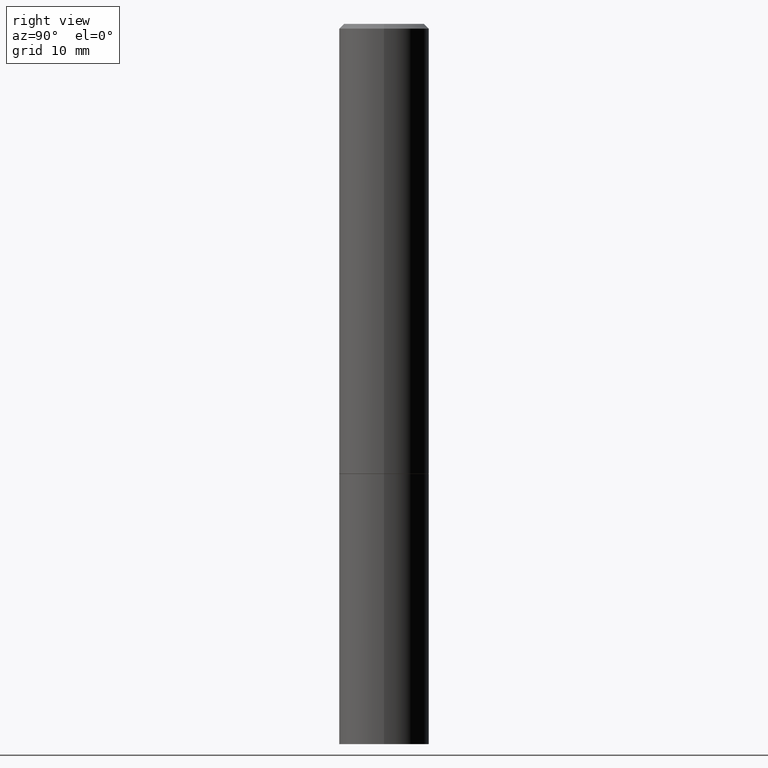
[diagram: clean part render]
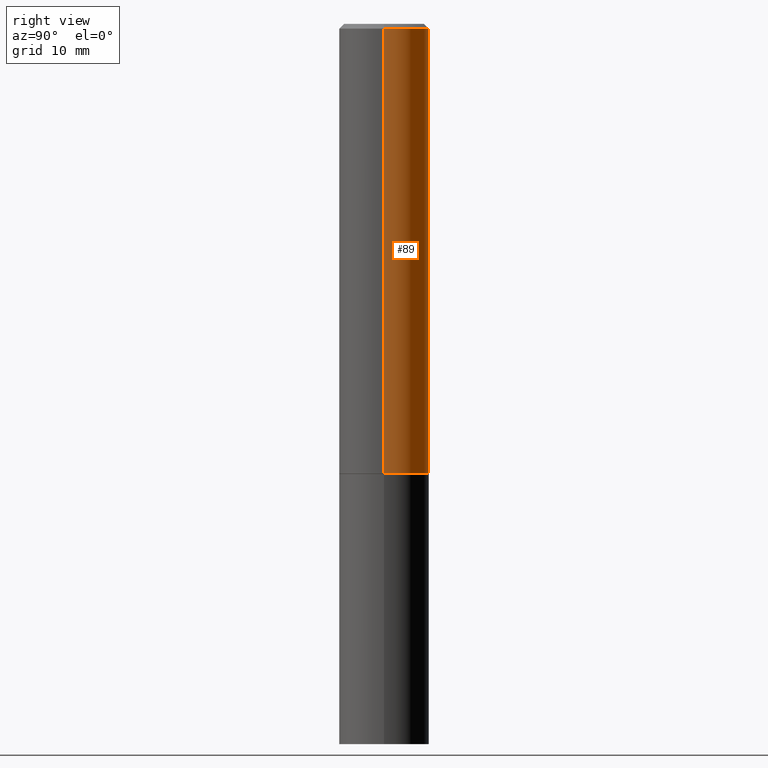
[diagram: same view with one face highlighted and labeled with its STEP entity id]
A machine part, right view. The second image highlights one B-rep face of the part: STEP entity #89.
In plain terms, the highlighted cylindrical surface (partial cylindrical patch) has radius 4.7625 mm, axis along (-0, 0, 1).
Its self-contained STEP definition (entity closure, byte-faithful):
#26 = CARTESIAN_POINT ( 'NONE',  ( 0.1874999999999999167, -1.309305502066174219E-15, 9.142831454617375408E-30 ) ) ;
#28 = VERTEX_POINT ( 'NONE', #181 ) ;
#31 = EDGE_CURVE ( 'NONE', #266, #28, #296, .T. ) ;
#36 = DIRECTION ( 'NONE',  ( 1.000000000000000000, -6.982962677686265133E-15, 0.000000000000000000 ) ) ;
#43 = DIRECTION ( 'NONE',  ( -2.445468806185136877E-29, 3.491481338843145188E-15, 1.000000000000000000 ) ) ;
#67 = DIRECTION ( 'NONE',  ( -2.445468806185136597E-29, 3.491481338843145583E-15, 1.000000000000000000 ) ) ;
#85 = ORIENTED_EDGE ( 'NONE', *, *, #342, .T. ) ;
#86 = DIRECTION ( 'NONE',  ( -2.445468806185136877E-29, 3.491481338843145188E-15, 1.000000000000000000 ) ) ;
#89 = ADVANCED_FACE ( 'NONE', ( #158 ), #275, .T. ) ;
#96 = DIRECTION ( 'NONE',  ( -2.445468806185136597E-29, 3.491481338843145583E-15, 1.000000000000000000 ) ) ;
#106 = AXIS2_PLACEMENT_3D ( 'NONE', #111, #344, #36 ) ;
#111 = CARTESIAN_POINT ( 'NONE',  ( 4.890937612370283668E-31, -6.982962677686305168E-17, -0.02000000000000004205 ) ) ;
#127 = ORIENTED_EDGE ( 'NONE', *, *, #338, .T. ) ;
#134 = CARTESIAN_POINT ( 'NONE',  ( 0.1875000000000000278, -7.852341531058230708E-15, -1.874000000000000110 ) ) ;
#138 = CARTESIAN_POINT ( 'NONE',  ( -0.1874999999999999167, 1.332267629550187257E-15, -9.223003294227943787E-30 ) ) ;
#140 = VECTOR ( 'NONE', #43, 39.37007874015748143 ) ;
#158 = FACE_OUTER_BOUND ( 'NONE', #186, .T. ) ;
#181 = CARTESIAN_POINT ( 'NONE',  ( 0.1874999999999997780, -1.356173001359023691E-15, -0.02000000000000004205 ) ) ;
#186 = EDGE_LOOP ( 'NONE', ( #85, #127, #318, #258 ) ) ;
#190 = AXIS2_PLACEMENT_3D ( 'NONE', #245, #67, #277 ) ;
#193 = VECTOR ( 'NONE', #86, 39.37007874015748143 ) ;
#199 = VERTEX_POINT ( 'NONE', #306 ) ;
#204 = CIRCLE ( 'NONE', #190, 0.1875000000000000278 ) ;
#208 = AXIS2_PLACEMENT_3D ( 'NONE', #358, #96, #213 ) ;
#212 = VERTEX_POINT ( 'NONE', #374 ) ;
#213 = DIRECTION ( 'NONE',  ( 1.000000000000000000, -6.982962677686265922E-15, 4.876176775795935793E-29 ) ) ;
#228 = EDGE_CURVE ( 'NONE', #28, #199, #297, .T. ) ;
#245 = CARTESIAN_POINT ( 'NONE',  ( 4.582808542790945516E-29, -6.543036028992054911E-15, -1.874000000000000110 ) ) ;
#258 = ORIENTED_EDGE ( 'NONE', *, *, #31, .F. ) ;
#266 = VERTEX_POINT ( 'NONE', #134 ) ;
#275 = CYLINDRICAL_SURFACE ( 'NONE', #208, 0.1874999999999999167 ) ;
#277 = DIRECTION ( 'NONE',  ( 1.000000000000000000, -6.982962677686266711E-15, 0.000000000000000000 ) ) ;
#285 = LINE ( 'NONE', #138, #140 ) ;
#296 = LINE ( 'NONE', #26, #193 ) ;
#297 = CIRCLE ( 'NONE', #106, 0.1874999999999997780 ) ;
#306 = CARTESIAN_POINT ( 'NONE',  ( -0.1874999999999997780, 1.239475875289310330E-15, -0.02000000000000004205 ) ) ;
#318 = ORIENTED_EDGE ( 'NONE', *, *, #228, .F. ) ;
#338 = EDGE_CURVE ( 'NONE', #212, #199, #285, .T. ) ;
#342 = EDGE_CURVE ( 'NONE', #266, #212, #204, .T. ) ;
#344 = DIRECTION ( 'NONE',  ( -2.445468806185136597E-29, 3.491481338843145583E-15, 1.000000000000000000 ) ) ;
#358 = CARTESIAN_POINT ( 'NONE',  ( 0.000000000000000000, 0.000000000000000000, 0.000000000000000000 ) ) ;
#374 = CARTESIAN_POINT ( 'NONE',  ( -0.1874999999999999722, -1.974165198334270073E-15, -1.874000000000000110 ) ) ;